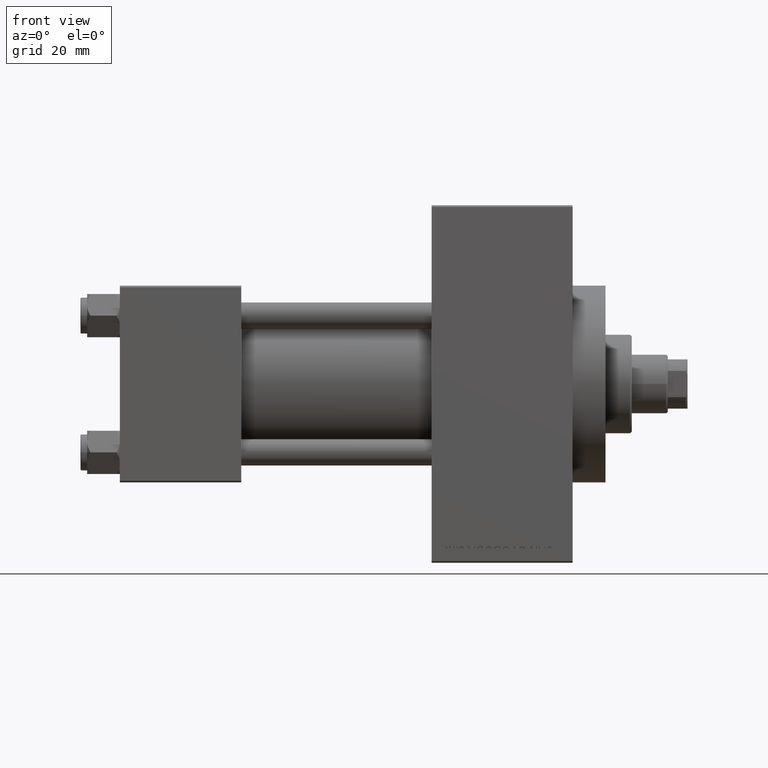
[diagram: clean part render]
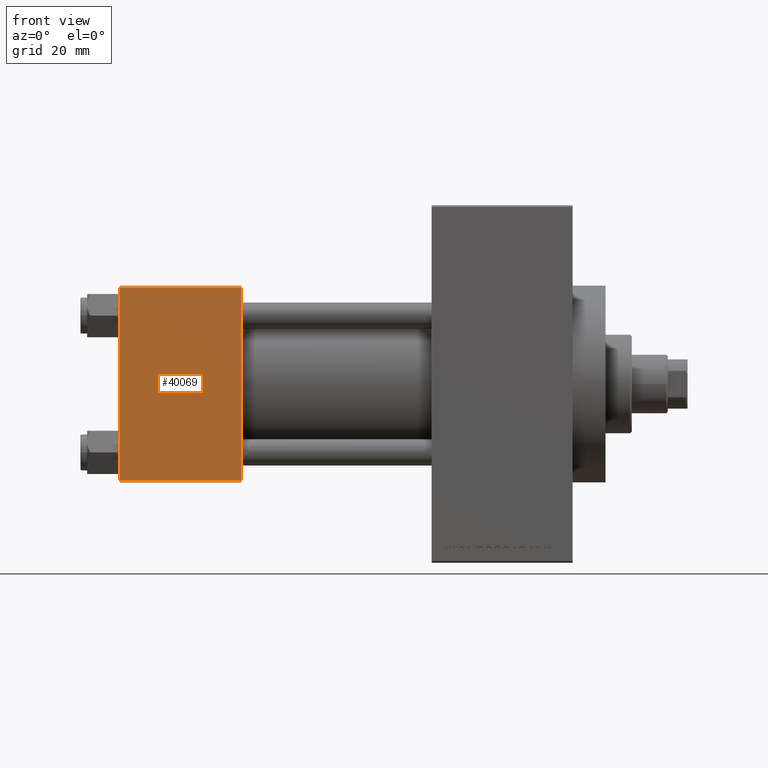
[diagram: same view with one face highlighted and labeled with its STEP entity id]
A machine part, front view. The second image highlights one B-rep face of the part: STEP entity #40069.
In plain terms, the highlighted planar face has unit normal (0, 1, 0).
Its self-contained STEP definition (entity closure, byte-faithful):
#139 = DIRECTION ( 'NONE',  ( 1.000000000000000000, 0.000000000000000000, 0.000000000000000000 ) ) ;
#540 = PLANE ( 'NONE',  #22346 ) ;
#1067 = VERTEX_POINT ( 'NONE', #25149 ) ;
#2258 = LINE ( 'NONE', #42626, #43712 ) ;
#7053 = CARTESIAN_POINT ( 'NONE',  ( 37.00000000000000000, -30.00000000000000000, 29.99999999999999289 ) ) ;
#7422 = EDGE_LOOP ( 'NONE', ( #17830, #29852, #29781, #29448 ) ) ;
#7521 = LINE ( 'NONE', #7053, #35707 ) ;
#9734 = CARTESIAN_POINT ( 'NONE',  ( 37.00000000000000000, -30.00000000000000000, 29.49999999999999289 ) ) ;
#10026 = CARTESIAN_POINT ( 'NONE',  ( 37.00000000000000000, -30.00000000000000000, 29.49999999999999289 ) ) ;
#11452 = CARTESIAN_POINT ( 'NONE',  ( 0.000000000000000000, -30.00000000000000000, -29.50000000000001776 ) ) ;
#11971 = FACE_OUTER_BOUND ( 'NONE', #7422, .T. ) ;
#12521 = EDGE_CURVE ( 'NONE', #14971, #22670, #15825, .T. ) ;
#12997 = DIRECTION ( 'NONE',  ( 0.000000000000000000, 0.000000000000000000, -1.000000000000000000 ) ) ;
#14971 = VERTEX_POINT ( 'NONE', #11452 ) ;
#15094 = DIRECTION ( 'NONE',  ( 0.000000000000000000, -0.000000000000000000, 1.000000000000000000 ) ) ;
#15825 = LINE ( 'NONE', #23220, #40432 ) ;
#17830 = ORIENTED_EDGE ( 'NONE', *, *, #20176, .T. ) ;
#18262 = DIRECTION ( 'NONE',  ( 0.000000000000000000, 0.000000000000000000, -1.000000000000000000 ) ) ;
#19140 = VERTEX_POINT ( 'NONE', #9734 ) ;
#20176 = EDGE_CURVE ( 'NONE', #1067, #14971, #2258, .T. ) ;
#22346 = AXIS2_PLACEMENT_3D ( 'NONE', #29905, #44004, #15094 ) ;
#22670 = VERTEX_POINT ( 'NONE', #43187 ) ;
#23220 = CARTESIAN_POINT ( 'NONE',  ( 37.00000000000000000, -30.00000000000000000, -29.50000000000001776 ) ) ;
#24062 = EDGE_CURVE ( 'NONE', #19140, #22670, #7521, .T. ) ;
#25149 = CARTESIAN_POINT ( 'NONE',  ( 0.000000000000000000, -30.00000000000000000, 29.49999999999999289 ) ) ;
#26687 = VECTOR ( 'NONE', #30844, 1000.000000000000000 ) ;
#28391 = EDGE_CURVE ( 'NONE', #19140, #1067, #34874, .T. ) ;
#29448 = ORIENTED_EDGE ( 'NONE', *, *, #28391, .T. ) ;
#29781 = ORIENTED_EDGE ( 'NONE', *, *, #24062, .F. ) ;
#29852 = ORIENTED_EDGE ( 'NONE', *, *, #12521, .T. ) ;
#29905 = CARTESIAN_POINT ( 'NONE',  ( 37.00000000000000000, -30.00000000000000000, 29.99999999999999289 ) ) ;
#30844 = DIRECTION ( 'NONE',  ( -1.000000000000000000, 0.000000000000000000, 0.000000000000000000 ) ) ;
#34874 = LINE ( 'NONE', #10026, #26687 ) ;
#35707 = VECTOR ( 'NONE', #18262, 1000.000000000000000 ) ;
#40069 = ADVANCED_FACE ( 'NONE', ( #11971 ), #540, .F. ) ;
#40432 = VECTOR ( 'NONE', #139, 1000.000000000000000 ) ;
#42626 = CARTESIAN_POINT ( 'NONE',  ( 0.000000000000000000, -30.00000000000000000, 29.99999999999999289 ) ) ;
#43187 = CARTESIAN_POINT ( 'NONE',  ( 37.00000000000000000, -30.00000000000000000, -29.50000000000001776 ) ) ;
#43712 = VECTOR ( 'NONE', #12997, 1000.000000000000000 ) ;
#44004 = DIRECTION ( 'NONE',  ( -0.000000000000000000, 1.000000000000000000, 0.000000000000000000 ) ) ;